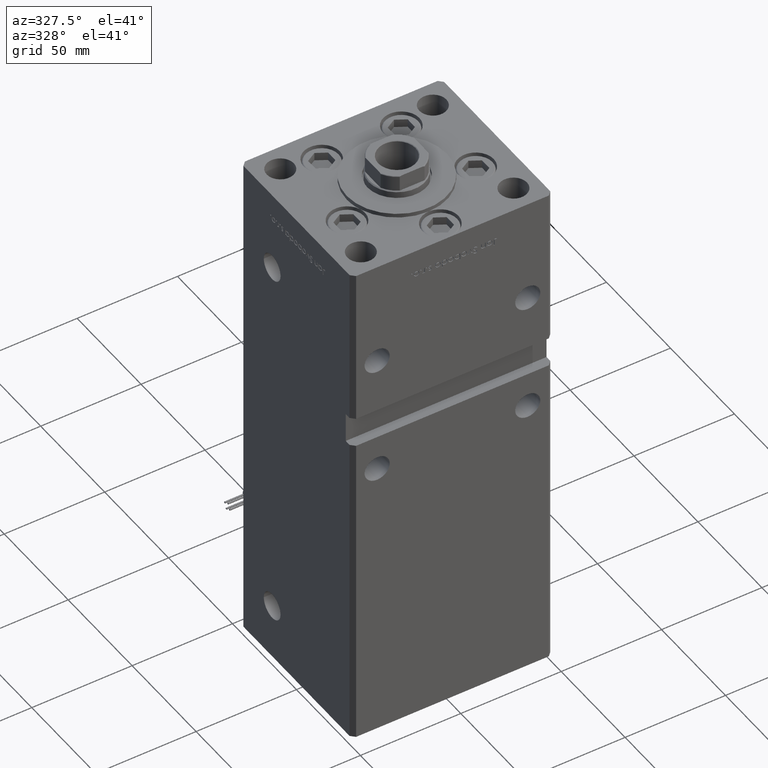
[diagram: clean part render]
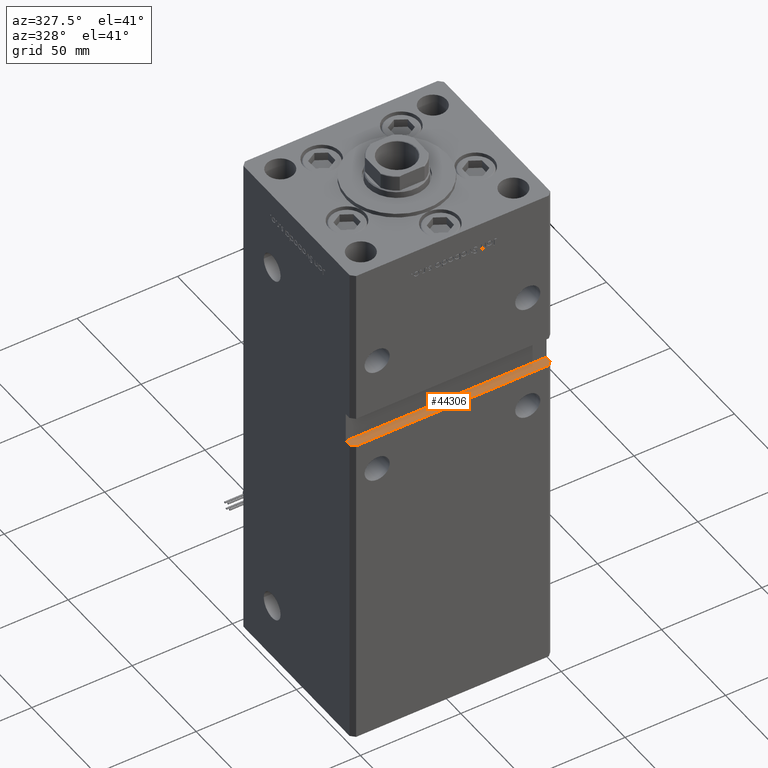
[diagram: same view with one face highlighted and labeled with its STEP entity id]
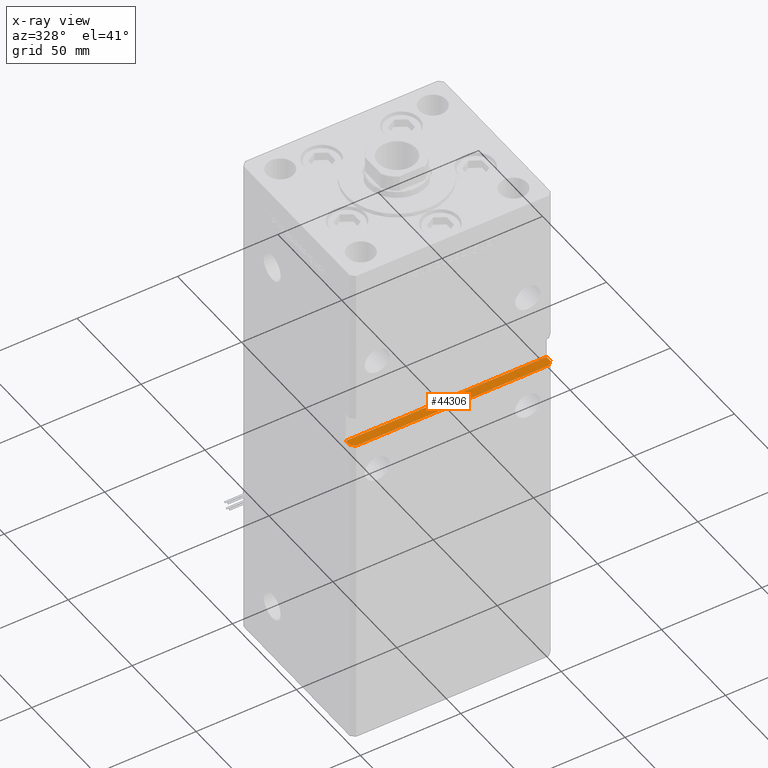
[diagram: x-ray of the same camera — body ghosted, the highlighted face saturated]
A machine part, auxiliary view. The second image highlights one B-rep face of the part: STEP entity #44306.
The next image is the same camera in x-ray: the body ghosted, the highlighted face saturated — about 0% of this face is hidden behind the body in this view.
In plain terms, the highlighted planar face has unit normal (0, 0, -1).
Its self-contained STEP definition (entity closure, byte-faithful):
#183 = VECTOR ( 'NONE', #53564, 1000.000000000000000 ) ;
#457 = EDGE_CURVE ( 'NONE', #37136, #14238, #986, .T. ) ;
#986 = LINE ( 'NONE', #22583, #183 ) ;
#3289 = EDGE_LOOP ( 'NONE', ( #24719, #29462, #4748, #17294, #17264, #5931 ) ) ;
#4509 = DIRECTION ( 'NONE',  ( -0.000000000000000000, -1.000000000000000000, -0.000000000000000000 ) ) ;
#4632 = CARTESIAN_POINT ( 'NONE',  ( -49.99999999999998579, -38.50000000000000000, 143.0000000000000284 ) ) ;
#4748 = ORIENTED_EDGE ( 'NONE', *, *, #20883, .F. ) ;
#5014 = VERTEX_POINT ( 'NONE', #37528 ) ;
#5931 = ORIENTED_EDGE ( 'NONE', *, *, #47325, .F. ) ;
#7786 = AXIS2_PLACEMENT_3D ( 'NONE', #49698, #40609, #48862 ) ;
#7873 = VERTEX_POINT ( 'NONE', #9010 ) ;
#9010 = CARTESIAN_POINT ( 'NONE',  ( 49.99999999999998579, -38.49999999999999289, 143.0000000000000284 ) ) ;
#9054 = CARTESIAN_POINT ( 'NONE',  ( -49.99999999999998579, -41.49999999999999289, 143.0000000000000284 ) ) ;
#11553 = DIRECTION ( 'NONE',  ( 1.000000000000000000, 0.000000000000000000, 0.000000000000000000 ) ) ;
#14238 = VERTEX_POINT ( 'NONE', #42012 ) ;
#16252 = EDGE_CURVE ( 'NONE', #55128, #7873, #39607, .T. ) ;
#17264 = ORIENTED_EDGE ( 'NONE', *, *, #19421, .T. ) ;
#17294 = ORIENTED_EDGE ( 'NONE', *, *, #16252, .F. ) ;
#19003 = LINE ( 'NONE', #36362, #29795 ) ;
#19421 = EDGE_CURVE ( 'NONE', #55128, #5014, #53115, .T. ) ;
#20883 = EDGE_CURVE ( 'NONE', #7873, #39343, #45358, .T. ) ;
#22407 = CARTESIAN_POINT ( 'NONE',  ( -49.99999999999998579, -38.50000000000000000, 143.0000000000000284 ) ) ;
#22583 = CARTESIAN_POINT ( 'NONE',  ( -49.99999999999998579, -43.50000000000000000, 143.0000000000000284 ) ) ;
#24719 = ORIENTED_EDGE ( 'NONE', *, *, #457, .T. ) ;
#25163 = VECTOR ( 'NONE', #48296, 1000.000000000000114 ) ;
#26923 = VECTOR ( 'NONE', #4509, 1000.000000000000000 ) ;
#27789 = FACE_OUTER_BOUND ( 'NONE', #3289, .T. ) ;
#29462 = ORIENTED_EDGE ( 'NONE', *, *, #49364, .T. ) ;
#29795 = VECTOR ( 'NONE', #49438, 1000.000000000000114 ) ;
#30677 = LINE ( 'NONE', #9054, #25163 ) ;
#32610 = CARTESIAN_POINT ( 'NONE',  ( -49.99999999999998579, -38.50000000000000000, 143.0000000000000284 ) ) ;
#33131 = CARTESIAN_POINT ( 'NONE',  ( 49.99999999999998579, -38.50000000000000000, 143.0000000000000284 ) ) ;
#34095 = VECTOR ( 'NONE', #11553, 1000.000000000000000 ) ;
#36362 = CARTESIAN_POINT ( 'NONE',  ( 49.99999999999998579, -41.49999999999999289, 143.0000000000000284 ) ) ;
#37136 = VERTEX_POINT ( 'NONE', #42048 ) ;
#37528 = CARTESIAN_POINT ( 'NONE',  ( -49.99999999999998579, -41.49999999999999289, 143.0000000000000284 ) ) ;
#39343 = VERTEX_POINT ( 'NONE', #54327 ) ;
#39607 = LINE ( 'NONE', #4632, #34095 ) ;
#40609 = DIRECTION ( 'NONE',  ( 0.000000000000000000, 0.000000000000000000, -1.000000000000000000 ) ) ;
#40887 = PLANE ( 'NONE',  #7786 ) ;
#41370 = DIRECTION ( 'NONE',  ( -0.000000000000000000, -1.000000000000000000, -0.000000000000000000 ) ) ;
#42012 = CARTESIAN_POINT ( 'NONE',  ( 47.99999999999998579, -43.50000000000000000, 143.0000000000000284 ) ) ;
#42048 = CARTESIAN_POINT ( 'NONE',  ( -47.99999999999998579, -43.50000000000000000, 143.0000000000000284 ) ) ;
#44306 = ADVANCED_FACE ( 'NONE', ( #27789 ), #40887, .F. ) ;
#45358 = LINE ( 'NONE', #33131, #55114 ) ;
#47325 = EDGE_CURVE ( 'NONE', #37136, #5014, #30677, .T. ) ;
#48296 = DIRECTION ( 'NONE',  ( -0.7071067811865474617, 0.7071067811865474617, 0.000000000000000000 ) ) ;
#48862 = DIRECTION ( 'NONE',  ( -1.000000000000000000, 0.000000000000000000, -0.000000000000000000 ) ) ;
#49364 = EDGE_CURVE ( 'NONE', #14238, #39343, #19003, .T. ) ;
#49438 = DIRECTION ( 'NONE',  ( 0.7071067811865474617, 0.7071067811865474617, 0.000000000000000000 ) ) ;
#49698 = CARTESIAN_POINT ( 'NONE',  ( -49.99999999999998579, -38.50000000000000000, 143.0000000000000284 ) ) ;
#53115 = LINE ( 'NONE', #22407, #26923 ) ;
#53564 = DIRECTION ( 'NONE',  ( 1.000000000000000000, 0.000000000000000000, 0.000000000000000000 ) ) ;
#54327 = CARTESIAN_POINT ( 'NONE',  ( 49.99999999999998579, -41.49999999999999289, 143.0000000000000284 ) ) ;
#55114 = VECTOR ( 'NONE', #41370, 1000.000000000000000 ) ;
#55128 = VERTEX_POINT ( 'NONE', #32610 ) ;